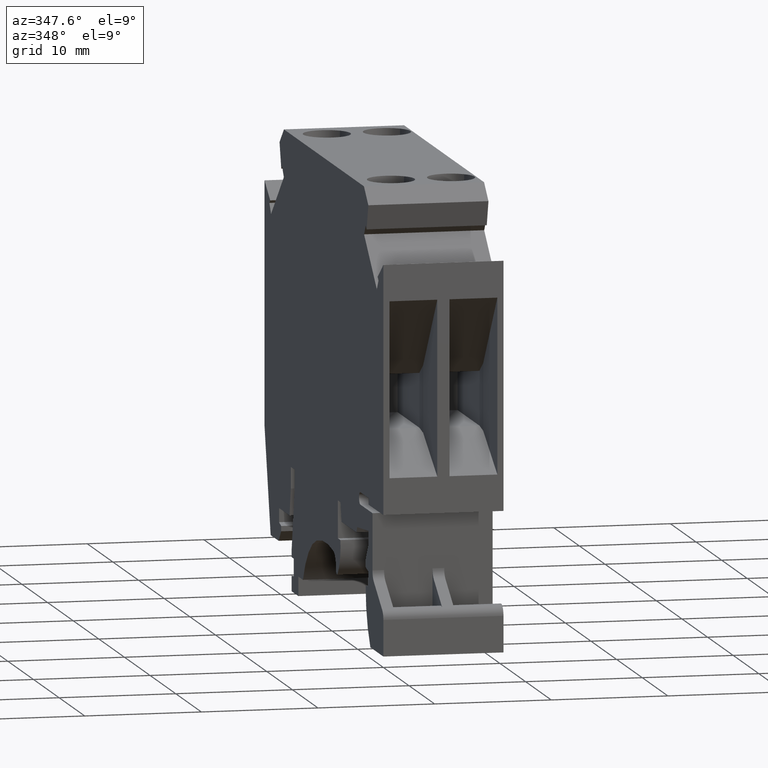
[diagram: clean part render]
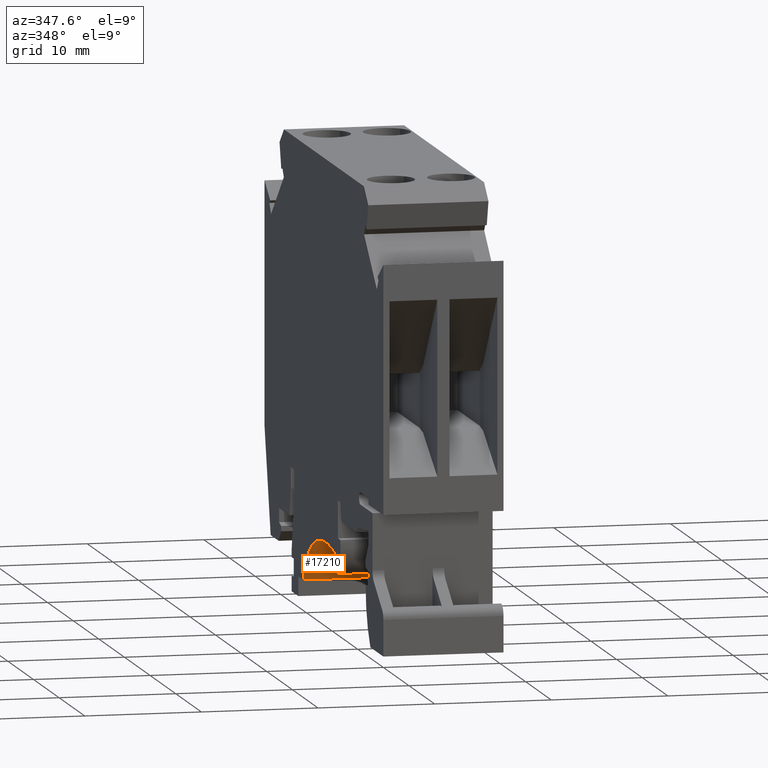
[diagram: same view with one face highlighted and labeled with its STEP entity id]
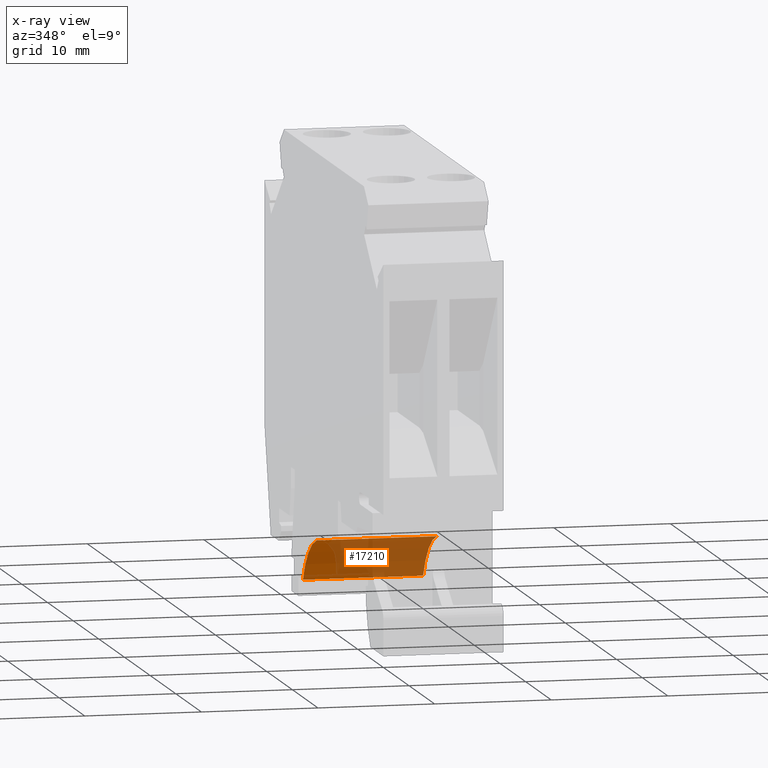
[diagram: x-ray of the same camera — body ghosted, the highlighted face saturated]
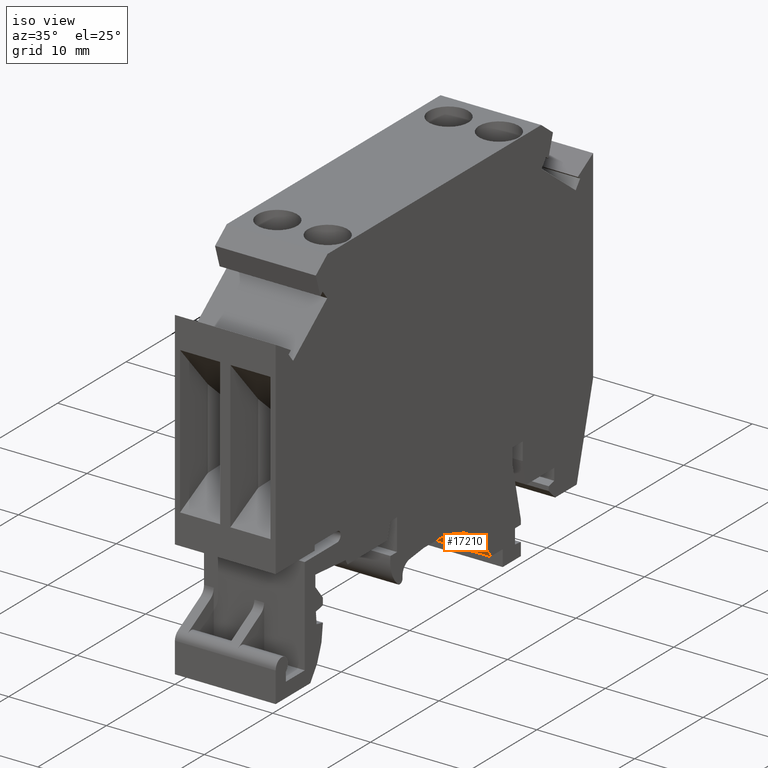
[diagram: same view with one face highlighted and labeled with its STEP entity id]
A machine part, auxiliary view. The second image highlights one B-rep face of the part: STEP entity #17210.
The next image is the same camera in x-ray: the body ghosted, the highlighted face saturated — about 75% of this face is hidden behind the body in this view.
A second angle (iso view) of the same face is appended — the face is thin or edge-on in the first view.
In plain terms, the highlighted cylindrical surface (partial cylindrical patch) has radius 8 mm, axis along (1, -0, 0).
Its self-contained STEP definition (entity closure, byte-faithful):
#3240=CARTESIAN_POINT('',(-13.4760350012745,5.87952375155818,10.3));
#3250=VERTEX_POINT('',#3240);
#3280=CARTESIAN_POINT('',(-20.6003231168159,2.24022177909756,10.3));
#3290=DIRECTION('',(0.,0.,1.));
#3300=DIRECTION('',(1.,0.,0.));
#3310=AXIS2_PLACEMENT_3D('',#3280,#3290,#3300);
#3320=CIRCLE('',#3310,8.00000000000001);
#3330=CARTESIAN_POINT('',(-18.8912739295069,10.0555369279165,10.3));
#3340=VERTEX_POINT('',#3330);
#3350=EDGE_CURVE('',#3250,#3340,#3320,.T.);
#8110=CARTESIAN_POINT('',(-18.8912739295069,10.0555369279165,
-7.105427357601E-15));
#8120=VERTEX_POINT('',#8110);
#8150=CARTESIAN_POINT('',(-20.6003231168159,2.24022177909756,
3.5527136788005E-15));
#8160=DIRECTION('',(0.,0.,1.));
#8170=DIRECTION('',(1.,0.,0.));
#8180=AXIS2_PLACEMENT_3D('',#8150,#8160,#8170);
#8190=CIRCLE('',#8180,8.00000000000001);
#8200=CARTESIAN_POINT('',(-13.4760350012745,5.87952375155818,
-7.105427357601E-15));
#8210=VERTEX_POINT('',#8200);
#8220=EDGE_CURVE('',#8210,#8120,#8190,.T.);
#16390=CARTESIAN_POINT('',(-18.8912739295069,10.0555369279165,5.15));
#16400=DIRECTION('',(0.,0.,-1.));
#16410=VECTOR('',#16400,1.);
#16420=LINE('',#16390,#16410);
#16430=EDGE_CURVE('',#3340,#8120,#16420,.T.);
#17050=CARTESIAN_POINT('',(-20.6003231168159,2.24022177909756,5.15));
#17060=DIRECTION('',(0.,0.,1.));
#17070=DIRECTION('',(1.,0.,0.));
#17080=AXIS2_PLACEMENT_3D('',#17050,#17060,#17070);
#17090=CYLINDRICAL_SURFACE('',#17080,8.00000000000001);
#17100=ORIENTED_EDGE('',*,*,#3350,.T.);
#17110=CARTESIAN_POINT('',(-13.4760350012745,5.87952375155818,5.15));
#17120=DIRECTION('',(0.,0.,1.));
#17130=VECTOR('',#17120,1.);
#17140=LINE('',#17110,#17130);
#17150=EDGE_CURVE('',#8210,#3250,#17140,.T.);
#17160=ORIENTED_EDGE('',*,*,#17150,.T.);
#17170=ORIENTED_EDGE('',*,*,#8220,.F.);
#17180=ORIENTED_EDGE('',*,*,#16430,.T.);
#17190=EDGE_LOOP('',(#17180,#17170,#17160,#17100));
#17200=FACE_OUTER_BOUND('',#17190,.T.);
#17210=ADVANCED_FACE('',(#17200),#17090,.F.);